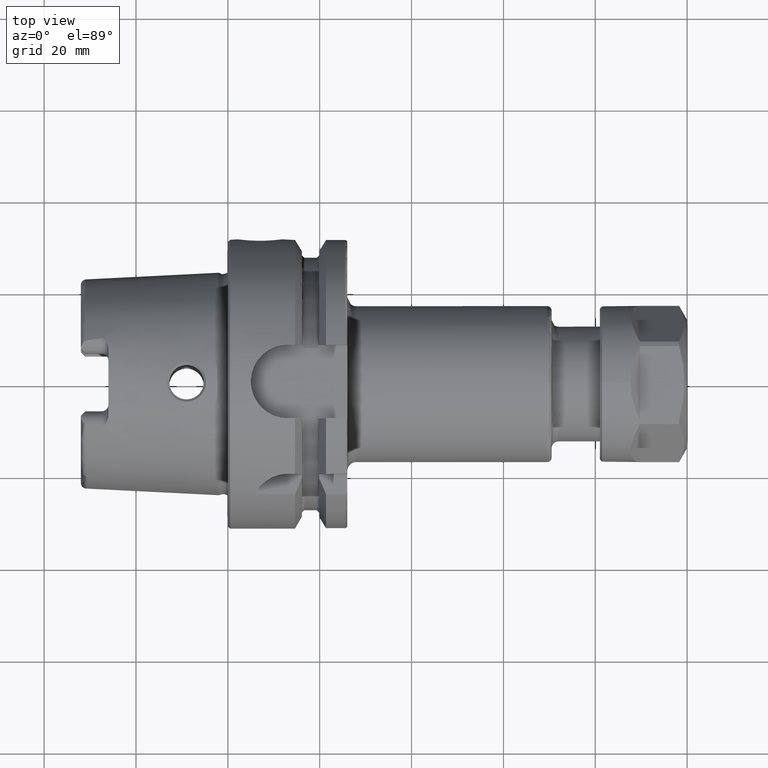
[diagram: clean part render]
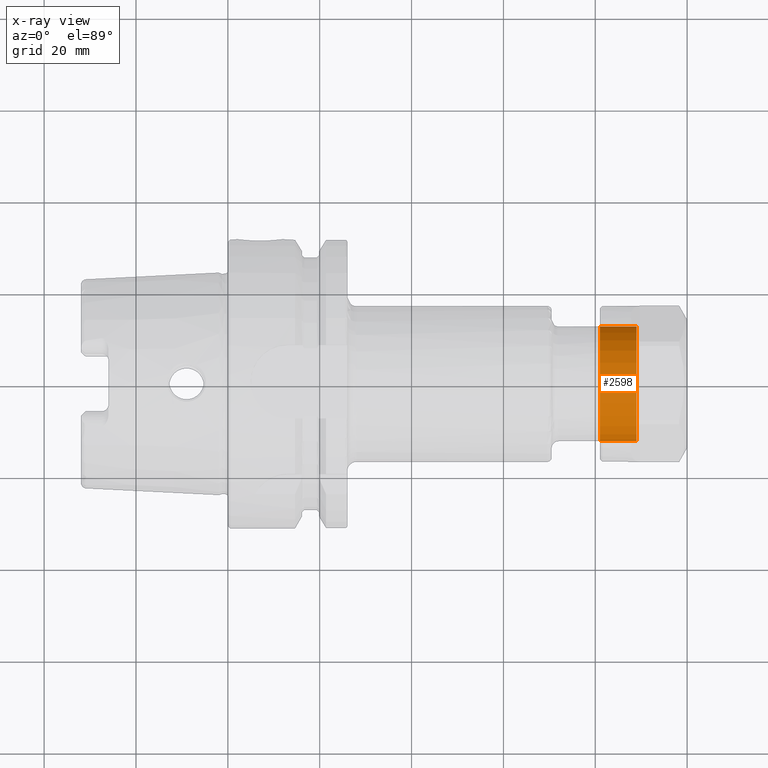
[diagram: x-ray — body ghosted, one internal face saturated and labeled with its STEP entity id]
A machine part, top view, then the same camera in x-ray: the body is ghosted and one INTERNAL B-rep face — a face not visible from any outside direction — is saturated and labeled: STEP entity #2598.
In plain terms, the highlighted cylindrical surface (bore or boss wall) has radius 12.5 mm, axis along (-1, -0, -0).
Its self-contained STEP definition (entity closure, byte-faithful):
#274=CYLINDRICAL_SURFACE('',#2988,12.5);
#422=FACE_OUTER_BOUND('',#588,.T.);
#588=EDGE_LOOP('',(#2425,#2426,#2427,#2428));
#726=LINE('',#5406,#862);
#862=VECTOR('',#3768,12.5);
#1017=CIRCLE('',#2989,12.5);
#1018=CIRCLE('',#2990,12.5);
#1269=VERTEX_POINT('',#5403);
#1270=VERTEX_POINT('',#5405);
#1655=EDGE_CURVE('',#1269,#1269,#1017,.T.);
#1656=EDGE_CURVE('',#1269,#1270,#726,.T.);
#1657=EDGE_CURVE('',#1270,#1270,#1018,.T.);
#2425=ORIENTED_EDGE('',*,*,#1655,.F.);
#2426=ORIENTED_EDGE('',*,*,#1656,.T.);
#2427=ORIENTED_EDGE('',*,*,#1657,.T.);
#2428=ORIENTED_EDGE('',*,*,#1656,.F.);
#2598=ADVANCED_FACE('',(#422),#274,.T.);
#2988=AXIS2_PLACEMENT_3D('',#5402,#3764,#3765);
#2989=AXIS2_PLACEMENT_3D('',#5404,#3766,#3767);
#2990=AXIS2_PLACEMENT_3D('',#5407,#3769,#3770);
#3764=DIRECTION('center_axis',(-1.,0.,0.));
#3765=DIRECTION('ref_axis',(0.,-1.,0.));
#3766=DIRECTION('center_axis',(-1.,0.,0.));
#3767=DIRECTION('ref_axis',(0.,1.,0.));
#3768=DIRECTION('',(1.,0.,0.));
#3769=DIRECTION('center_axis',(-1.,0.,0.));
#3770=DIRECTION('ref_axis',(0.,1.,0.));
#5402=CARTESIAN_POINT('Origin',(-9.5,0.,0.));
#5403=CARTESIAN_POINT('',(-9.5,12.5,-1.53080849893419E-15));
#5404=CARTESIAN_POINT('Origin',(-9.5,0.,0.));
#5405=CARTESIAN_POINT('',(-1.5,12.5,-1.53080849893419E-15));
#5406=CARTESIAN_POINT('',(-9.5,12.5,-1.53080849893419E-15));
#5407=CARTESIAN_POINT('Origin',(-1.5,0.,0.));